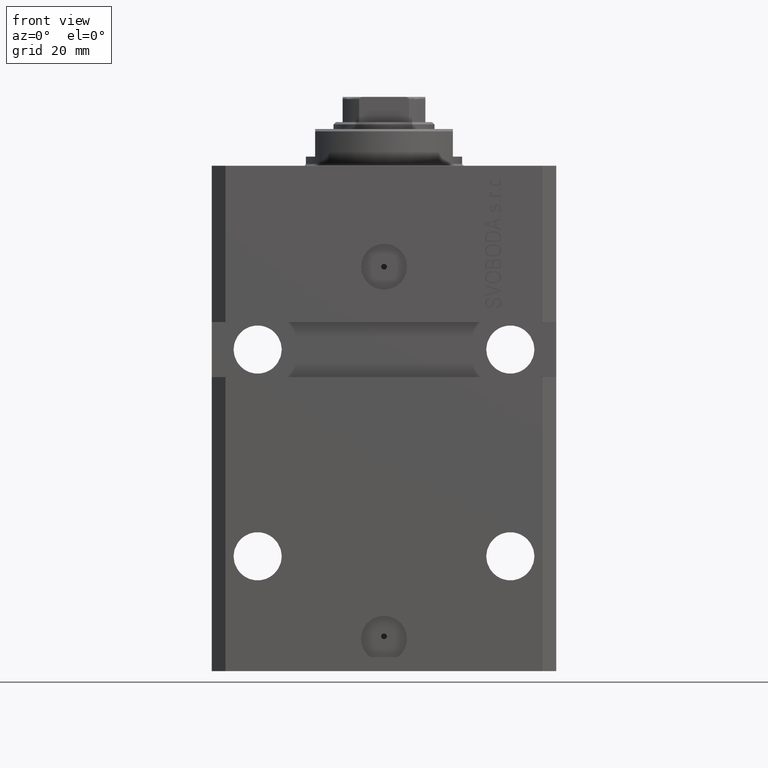
[diagram: clean part render]
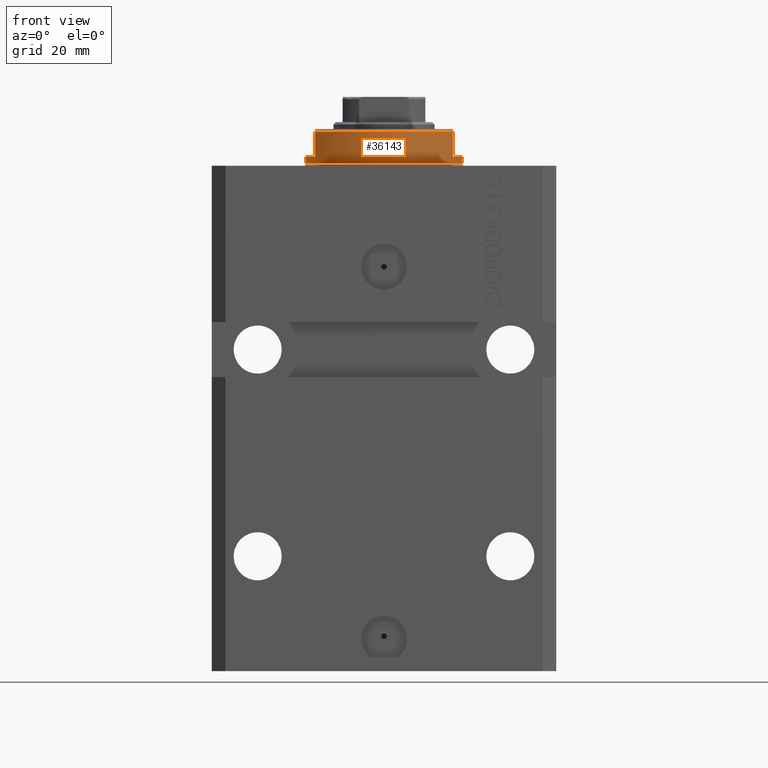
[diagram: same view with one face highlighted and labeled with its STEP entity id]
A machine part, front view. The second image highlights one B-rep face of the part: STEP entity #36143.
In plain terms, the highlighted cylindrical surface (partial cylindrical patch) has radius 17 mm, axis along (0, 0, -1).
Its self-contained STEP definition (entity closure, byte-faithful):
#253 = CARTESIAN_POINT ( 'NONE',  ( -17.00000000000000000, 2.081899558550500280E-15, -8.000000000000000000 ) ) ;
#639 = EDGE_LOOP ( 'NONE', ( #16564, #32340, #9102, #27772, #45975, #41422, #38837, #36169 ) ) ;
#1000 = DIRECTION ( 'NONE',  ( 1.000000000000000000, 0.000000000000000000, 0.000000000000000000 ) ) ;
#1139 = CARTESIAN_POINT ( 'NONE',  ( 17.00000000000000000, 0.000000000000000000, -8.000000000000000000 ) ) ;
#1163 = EDGE_CURVE ( 'NONE', #37896, #42370, #27875, .T. ) ;
#1553 = CARTESIAN_POINT ( 'NONE',  ( 15.00000000000000000, -8.000000000000001776, -7.500000000000007105 ) ) ;
#1817 = VECTOR ( 'NONE', #33647, 1000.000000000000000 ) ;
#1977 = EDGE_CURVE ( 'NONE', #3138, #29051, #41318, .T. ) ;
#2151 = EDGE_CURVE ( 'NONE', #21964, #3138, #24760, .T. ) ;
#2509 = DIRECTION ( 'NONE',  ( 0.000000000000000000, 0.000000000000000000, -1.000000000000000000 ) ) ;
#2580 = CARTESIAN_POINT ( 'NONE',  ( 0.000000000000000000, 0.000000000000000000, -7.500000000000007105 ) ) ;
#3138 = VERTEX_POINT ( 'NONE', #42977 ) ;
#4027 = CYLINDRICAL_SURFACE ( 'NONE', #7215, 17.00000000000000000 ) ;
#4362 = CIRCLE ( 'NONE', #46417, 17.00000000000000000 ) ;
#4504 = DIRECTION ( 'NONE',  ( -0.000000000000000000, -0.000000000000000000, 1.000000000000000000 ) ) ;
#5473 = CARTESIAN_POINT ( 'NONE',  ( -17.00000000000000000, 2.081899558550500280E-15, -2.000000000000000000 ) ) ;
#6117 = DIRECTION ( 'NONE',  ( -1.000000000000000000, 0.000000000000000000, 0.000000000000000000 ) ) ;
#7215 = AXIS2_PLACEMENT_3D ( 'NONE', #32755, #43543, #14344 ) ;
#7287 = EDGE_CURVE ( 'NONE', #25855, #13858, #14436, .T. ) ;
#7459 = EDGE_CURVE ( 'NONE', #34039, #42370, #27205, .T. ) ;
#7755 = AXIS2_PLACEMENT_3D ( 'NONE', #2580, #16951, #21477 ) ;
#9102 = ORIENTED_EDGE ( 'NONE', *, *, #7287, .T. ) ;
#9263 = CARTESIAN_POINT ( 'NONE',  ( 17.00000000000000000, 0.000000000000000000, -0.5000000000000004441 ) ) ;
#11582 = DIRECTION ( 'NONE',  ( 0.000000000000000000, 0.000000000000000000, -1.000000000000000000 ) ) ;
#11787 = CARTESIAN_POINT ( 'NONE',  ( 0.000000000000000000, 0.000000000000000000, -0.5000000000000004441 ) ) ;
#12389 = CARTESIAN_POINT ( 'NONE',  ( -15.00000000000000000, -8.000000000000001776, -7.500000000000007105 ) ) ;
#13490 = AXIS2_PLACEMENT_3D ( 'NONE', #11787, #33797, #1000 ) ;
#13858 = VERTEX_POINT ( 'NONE', #12389 ) ;
#14344 = DIRECTION ( 'NONE',  ( 1.000000000000000000, 0.000000000000000000, 0.000000000000000000 ) ) ;
#14436 = LINE ( 'NONE', #29022, #19582 ) ;
#15909 = EDGE_CURVE ( 'NONE', #21964, #34039, #37536, .T. ) ;
#16564 = ORIENTED_EDGE ( 'NONE', *, *, #1163, .F. ) ;
#16951 = DIRECTION ( 'NONE',  ( 0.000000000000000000, 0.000000000000000000, 1.000000000000000000 ) ) ;
#18159 = FACE_OUTER_BOUND ( 'NONE', #639, .T. ) ;
#19284 = CARTESIAN_POINT ( 'NONE',  ( 15.00000000000000000, -8.000000000000001776, -8.000000000000000000 ) ) ;
#19582 = VECTOR ( 'NONE', #40033, 1000.000000000000000 ) ;
#20256 = CARTESIAN_POINT ( 'NONE',  ( -17.00000000000000000, 2.081899558550500280E-15, -0.5000000000000004441 ) ) ;
#21477 = DIRECTION ( 'NONE',  ( -1.000000000000000000, 0.000000000000000000, 0.000000000000000000 ) ) ;
#21964 = VERTEX_POINT ( 'NONE', #36918 ) ;
#24760 = CIRCLE ( 'NONE', #36200, 17.00000000000000000 ) ;
#25087 = VECTOR ( 'NONE', #4504, 1000.000000000000000 ) ;
#25855 = VERTEX_POINT ( 'NONE', #36243 ) ;
#26700 = EDGE_CURVE ( 'NONE', #13858, #29051, #35261, .T. ) ;
#27205 = CIRCLE ( 'NONE', #13490, 17.00000000000000000 ) ;
#27772 = ORIENTED_EDGE ( 'NONE', *, *, #26700, .T. ) ;
#27875 = LINE ( 'NONE', #253, #43819 ) ;
#29022 = CARTESIAN_POINT ( 'NONE',  ( -15.00000000000000000, -8.000000000000001776, -8.000000000000000000 ) ) ;
#29051 = VERTEX_POINT ( 'NONE', #1553 ) ;
#29288 = DIRECTION ( 'NONE',  ( -1.000000000000000000, 0.000000000000000000, 0.000000000000000000 ) ) ;
#32340 = ORIENTED_EDGE ( 'NONE', *, *, #41991, .F. ) ;
#32398 = DIRECTION ( 'NONE',  ( -0.000000000000000000, -0.000000000000000000, 1.000000000000000000 ) ) ;
#32755 = CARTESIAN_POINT ( 'NONE',  ( 0.000000000000000000, 0.000000000000000000, -8.000000000000000000 ) ) ;
#33647 = DIRECTION ( 'NONE',  ( 0.000000000000000000, 0.000000000000000000, -1.000000000000000000 ) ) ;
#33797 = DIRECTION ( 'NONE',  ( -0.000000000000000000, -0.000000000000000000, -1.000000000000000000 ) ) ;
#34039 = VERTEX_POINT ( 'NONE', #9263 ) ;
#35261 = CIRCLE ( 'NONE', #7755, 17.00000000000000000 ) ;
#36009 = CARTESIAN_POINT ( 'NONE',  ( 0.000000000000000000, 0.000000000000000000, -2.000000000000000000 ) ) ;
#36143 = ADVANCED_FACE ( 'NONE', ( #18159 ), #4027, .T. ) ;
#36169 = ORIENTED_EDGE ( 'NONE', *, *, #7459, .T. ) ;
#36200 = AXIS2_PLACEMENT_3D ( 'NONE', #36009, #2509, #6117 ) ;
#36243 = CARTESIAN_POINT ( 'NONE',  ( -14.99999999999999645, -8.000000000000003553, -2.000000000000000000 ) ) ;
#36918 = CARTESIAN_POINT ( 'NONE',  ( 17.00000000000000000, 0.000000000000000000, -2.000000000000000000 ) ) ;
#37536 = LINE ( 'NONE', #1139, #25087 ) ;
#37896 = VERTEX_POINT ( 'NONE', #5473 ) ;
#38837 = ORIENTED_EDGE ( 'NONE', *, *, #15909, .T. ) ;
#40033 = DIRECTION ( 'NONE',  ( 0.000000000000000000, 0.000000000000000000, -1.000000000000000000 ) ) ;
#41318 = LINE ( 'NONE', #19284, #1817 ) ;
#41422 = ORIENTED_EDGE ( 'NONE', *, *, #2151, .F. ) ;
#41991 = EDGE_CURVE ( 'NONE', #25855, #37896, #4362, .T. ) ;
#42370 = VERTEX_POINT ( 'NONE', #20256 ) ;
#42977 = CARTESIAN_POINT ( 'NONE',  ( 14.99999999999999645, -8.000000000000003553, -2.000000000000000000 ) ) ;
#43543 = DIRECTION ( 'NONE',  ( -0.000000000000000000, -0.000000000000000000, 1.000000000000000000 ) ) ;
#43819 = VECTOR ( 'NONE', #32398, 1000.000000000000000 ) ;
#44393 = CARTESIAN_POINT ( 'NONE',  ( 0.000000000000000000, 0.000000000000000000, -2.000000000000000000 ) ) ;
#45975 = ORIENTED_EDGE ( 'NONE', *, *, #1977, .F. ) ;
#46417 = AXIS2_PLACEMENT_3D ( 'NONE', #44393, #11582, #29288 ) ;